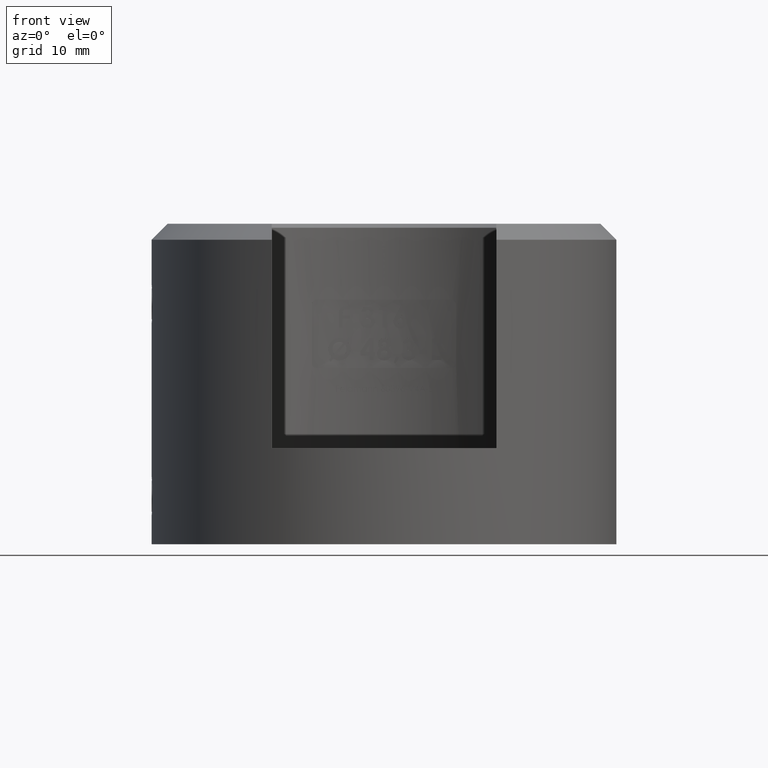
[diagram: clean part render]
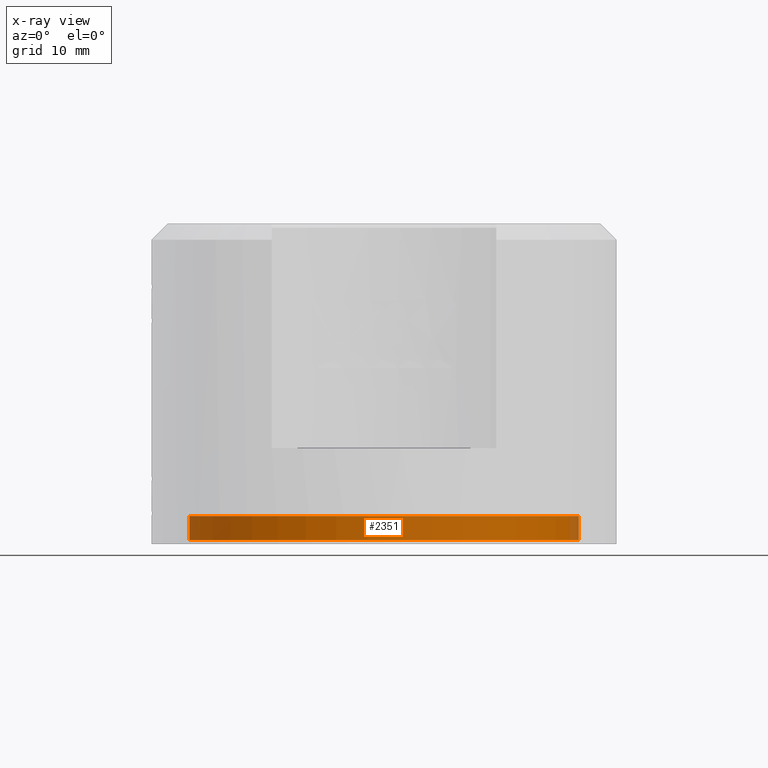
[diagram: x-ray — body ghosted, one internal face saturated and labeled with its STEP entity id]
A machine part, front view, then the same camera in x-ray: the body is ghosted and one INTERNAL B-rep face — a face not visible from any outside direction — is saturated and labeled: STEP entity #2351.
In plain terms, the highlighted cylindrical surface (partial cylindrical patch) has radius 24.3 mm, axis along (0, 0, 1).
Its self-contained STEP definition (entity closure, byte-faithful):
#22 = CARTESIAN_POINT ( 'NONE',  ( 24.30000000000000100, 0.0000000000000000000, 5.000000000000004400 ) ) ;
#417 = CARTESIAN_POINT ( 'NONE',  ( -24.30000000000000100, 2.975891721928068800E-015, -4.499999999999997300 ) ) ;
#509 = ORIENTED_EDGE ( 'NONE', *, *, #5879, .T. ) ;
#2239 = VERTEX_POINT ( 'NONE', #22286 ) ;
#2272 = DIRECTION ( 'NONE',  ( -0.0000000000000000000, -0.0000000000000000000, 1.000000000000000000 ) ) ;
#2351 = ADVANCED_FACE ( 'NONE', ( #11072 ), #26826, .T. ) ;
#3309 = AXIS2_PLACEMENT_3D ( 'NONE', #14173, #8172, #23168 ) ;
#3415 = ORIENTED_EDGE ( 'NONE', *, *, #25153, .F. ) ;
#4225 = CARTESIAN_POINT ( 'NONE',  ( 24.30000000000000100, 0.0000000000000000000, -1.480000000000004000 ) ) ;
#5787 = DIRECTION ( 'NONE',  ( 1.000000000000000000, 0.0000000000000000000, 0.0000000000000000000 ) ) ;
#5879 = EDGE_CURVE ( 'NONE', #26277, #21422, #16872, .T. ) ;
#6152 = CARTESIAN_POINT ( 'NONE',  ( 24.30000000000000100, 0.0000000000000000000, -4.499999999999997300 ) ) ;
#6398 = CARTESIAN_POINT ( 'NONE',  ( -24.30000000000000100, 2.975891721928068800E-015, 5.000000000000004400 ) ) ;
#7655 = VERTEX_POINT ( 'NONE', #4225 ) ;
#7681 = EDGE_CURVE ( 'NONE', #26277, #2239, #22264, .T. ) ;
#7696 = DIRECTION ( 'NONE',  ( 1.000000000000000000, 0.0000000000000000000, 0.0000000000000000000 ) ) ;
#8172 = DIRECTION ( 'NONE',  ( -0.0000000000000000000, -0.0000000000000000000, 1.000000000000000000 ) ) ;
#9729 = CARTESIAN_POINT ( 'NONE',  ( 0.0000000000000000000, 0.0000000000000000000, -1.480000000000004000 ) ) ;
#10155 = ORIENTED_EDGE ( 'NONE', *, *, #7681, .F. ) ;
#11072 = FACE_OUTER_BOUND ( 'NONE', #12058, .T. ) ;
#11596 = EDGE_CURVE ( 'NONE', #21422, #7655, #12320, .T. ) ;
#12058 = EDGE_LOOP ( 'NONE', ( #10155, #509, #21973, #3415 ) ) ;
#12271 = CARTESIAN_POINT ( 'NONE',  ( 0.0000000000000000000, 0.0000000000000000000, 5.000000000000004400 ) ) ;
#12320 = LINE ( 'NONE', #22, #26067 ) ;
#14173 = CARTESIAN_POINT ( 'NONE',  ( 0.0000000000000000000, 0.0000000000000000000, -4.499999999999997300 ) ) ;
#15226 = DIRECTION ( 'NONE',  ( -0.0000000000000000000, -0.0000000000000000000, 1.000000000000000000 ) ) ;
#16872 = CIRCLE ( 'NONE', #3309, 24.30000000000000100 ) ;
#16947 = VECTOR ( 'NONE', #2272, 1000.000000000000000 ) ;
#19105 = AXIS2_PLACEMENT_3D ( 'NONE', #12271, #27082, #5787 ) ;
#19871 = AXIS2_PLACEMENT_3D ( 'NONE', #9729, #24260, #7696 ) ;
#21422 = VERTEX_POINT ( 'NONE', #6152 ) ;
#21973 = ORIENTED_EDGE ( 'NONE', *, *, #11596, .T. ) ;
#22264 = LINE ( 'NONE', #6398, #16947 ) ;
#22286 = CARTESIAN_POINT ( 'NONE',  ( -24.30000000000000100, 2.975891721928068800E-015, -1.480000000000004000 ) ) ;
#23168 = DIRECTION ( 'NONE',  ( 1.000000000000000000, 0.0000000000000000000, 0.0000000000000000000 ) ) ;
#24260 = DIRECTION ( 'NONE',  ( -0.0000000000000000000, -0.0000000000000000000, 1.000000000000000000 ) ) ;
#24751 = CIRCLE ( 'NONE', #19871, 24.30000000000000100 ) ;
#25153 = EDGE_CURVE ( 'NONE', #2239, #7655, #24751, .T. ) ;
#26067 = VECTOR ( 'NONE', #15226, 1000.000000000000000 ) ;
#26277 = VERTEX_POINT ( 'NONE', #417 ) ;
#26826 = CYLINDRICAL_SURFACE ( 'NONE', #19105, 24.30000000000000100 ) ;
#27082 = DIRECTION ( 'NONE',  ( -0.0000000000000000000, -0.0000000000000000000, 1.000000000000000000 ) ) ;